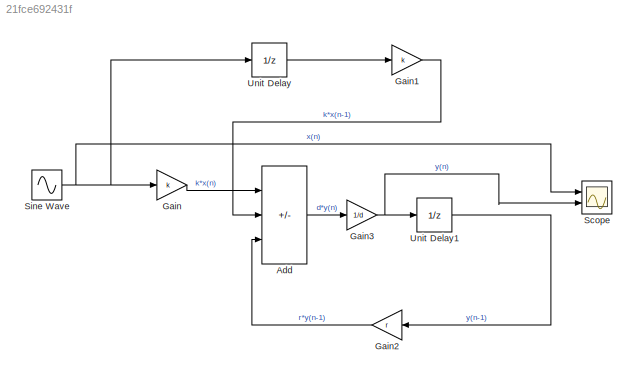
MODEL slx_21fce692431f
KIND model
CONFIG AbsTol = auto
CONFIG EnableMultiTasking = off
CONFIG FixedStep = 0.000002
CONFIG MaxStep = auto
CONFIG MinStep = auto
CONFIG RelTol = 1e-3
CONFIG SampleTimeConstraint = Unconstrained
CONFIG SolverName = FixedStepAuto
CONFIG StartTime = 0.0
CONFIG StopTime = 0.05
BLOCK [Sum] Add
  IconShape = rectangular
  Inputs = +-+
  Ports = [3, 1]
BLOCK [Gain] Gain
  Gain = k
BLOCK [Gain] Gain1
  Gain = k
BLOCK [Gain] Gain2
  Gain = r
  NameLocation = top
BLOCK [Gain] Gain3
  Gain = 1/d
BLOCK [Scope] Scope
  Floating = off
  NumInputPorts = 2
  Ports = [2]
  ScopeSpecificationString = Simulink.scopes.TimeScopeBlockCfg('CurrentConfiguration', extmgr.ConfigurationSet(extmgr.Configuration('Core','General UI',true),extmgr.Configuration('Core','Source UI',true),extmgr.Configuration('Sources','WiredSimulink',true),extmgr.Configuration('Visuals','Time Domain',true,'SerializedDisplays',{struct('MinYLimReal','-1.25','MaxYLimReal','1.25','YLabelReal','','MinYLimMag','0.00000','MaxYLimMag...<+2020ch>
BLOCK [Sin] Sine Wave
  Frequency = 2*pi*500
  Ports = [0, 1]
  SampleTime = 0
BLOCK [UnitDelay] Unit Delay
  HasFrameUpgradeWarning = on
  SampleTime = -1
BLOCK [UnitDelay] Unit Delay1
  HasFrameUpgradeWarning = on
  SampleTime = -1
LINE Add:1 -> Gain3:1
LINE Gain1:1 -> Add:2
LINE Gain2:1 -> Add:3
NET Gain3:1 -> Scope:2, Unit Delay1:1
LINE Gain:1 -> Add:1
NET Sine Wave:1 -> Gain:1, Scope:1, Unit Delay:1
LINE Unit Delay1:1 -> Gain2:1
LINE Unit Delay:1 -> Gain1:1
note: NET lines group one-source signal fan-out (src -> all destinations, sorted); 1:1 wires keep LINE
